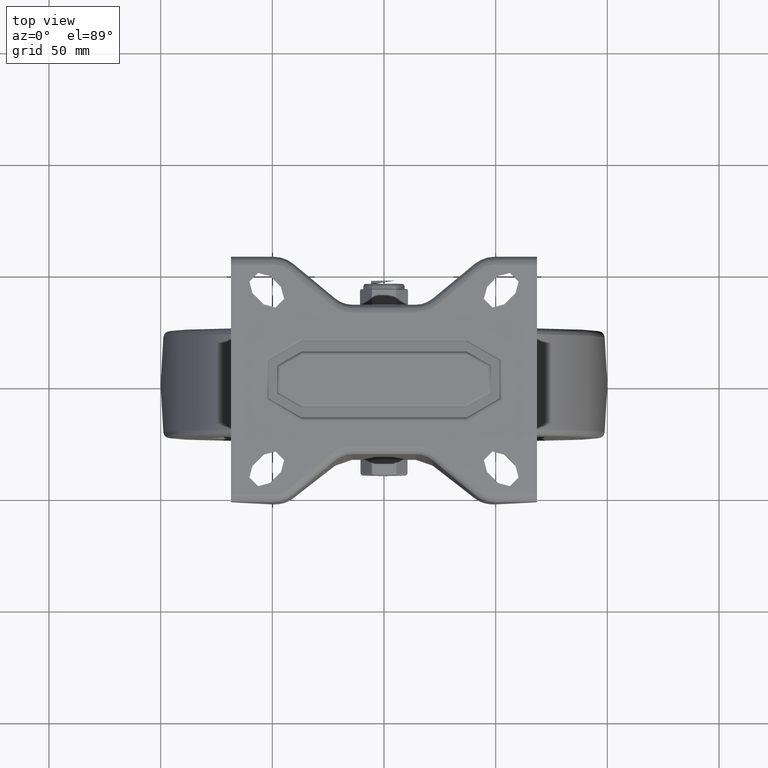
[diagram: clean part render]
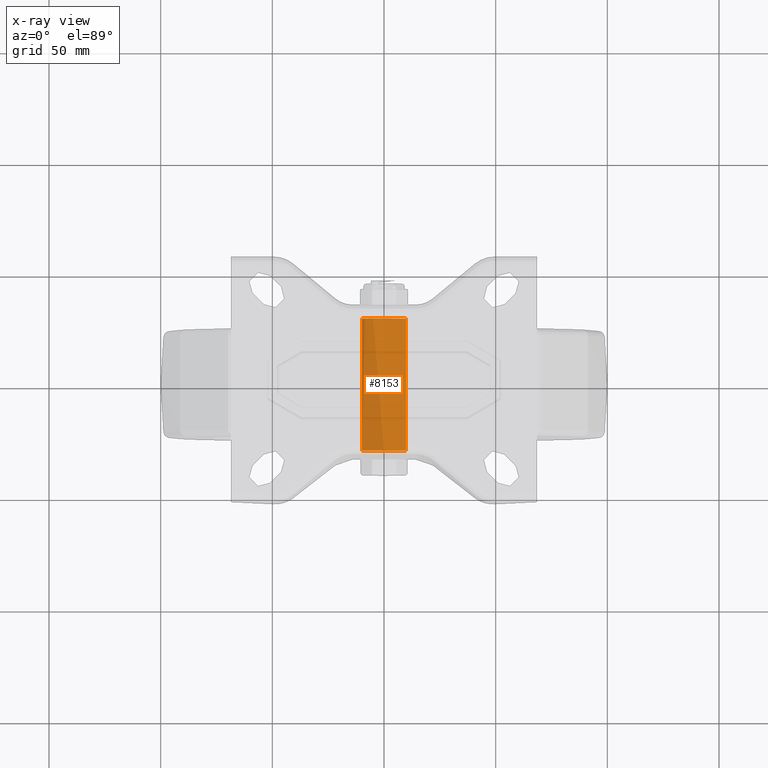
[diagram: x-ray — body ghosted, one internal face saturated and labeled with its STEP entity id]
A machine part, top view, then the same camera in x-ray: the body is ghosted and one INTERNAL B-rep face — a face not visible from any outside direction — is saturated and labeled: STEP entity #8153.
In plain terms, the highlighted cylindrical surface (bore or boss wall) has radius 9.875 mm, axis along (0, 1, 0).
Its self-contained STEP definition (entity closure, byte-faithful):
#1018=FACE_OUTER_BOUND('',#1528,.T.);
#1528=EDGE_LOOP('',(#6732,#6733,#6734,#6735,#6736,#6737));
#2150=LINE('',#13502,#2775);
#2775=VECTOR('',#10896,9.875);
#3251=CIRCLE('',#9057,9.875);
#3252=CIRCLE('',#9058,9.875);
#3253=CIRCLE('',#9059,9.875);
#3254=CIRCLE('',#9060,9.875);
#3803=VERTEX_POINT('',#13497);
#3804=VERTEX_POINT('',#13498);
#3805=VERTEX_POINT('',#13501);
#3806=VERTEX_POINT('',#13503);
#4821=EDGE_CURVE('',#3803,#3804,#3251,.T.);
#4822=EDGE_CURVE('',#3804,#3803,#3252,.T.);
#4823=EDGE_CURVE('',#3804,#3805,#2150,.T.);
#4824=EDGE_CURVE('',#3806,#3805,#3253,.T.);
#4825=EDGE_CURVE('',#3805,#3806,#3254,.T.);
#6732=ORIENTED_EDGE('',*,*,#4821,.F.);
#6733=ORIENTED_EDGE('',*,*,#4822,.F.);
#6734=ORIENTED_EDGE('',*,*,#4823,.T.);
#6735=ORIENTED_EDGE('',*,*,#4824,.F.);
#6736=ORIENTED_EDGE('',*,*,#4825,.F.);
#6737=ORIENTED_EDGE('',*,*,#4823,.F.);
#7800=CYLINDRICAL_SURFACE('',#9056,9.875);
#8153=ADVANCED_FACE('',(#1018),#7800,.T.);
#9056=AXIS2_PLACEMENT_3D('',#13496,#10890,#10891);
#9057=AXIS2_PLACEMENT_3D('',#13499,#10892,#10893);
#9058=AXIS2_PLACEMENT_3D('',#13500,#10894,#10895);
#9059=AXIS2_PLACEMENT_3D('',#13504,#10897,#10898);
#9060=AXIS2_PLACEMENT_3D('',#13505,#10899,#10900);
#10890=DIRECTION('center_axis',(0.,1.,3.49148336110938E-15));
#10891=DIRECTION('ref_axis',(1.,0.,0.));
#10892=DIRECTION('center_axis',(5.48171579701652E-47,1.,3.49148336110938E-15));
#10893=DIRECTION('ref_axis',(-1.,-4.27583392245887E-31,1.22464679914736E-16));
#10894=DIRECTION('center_axis',(5.48171579701652E-47,1.,3.49148336110938E-15));
#10895=DIRECTION('ref_axis',(-1.,-4.27583392245887E-31,1.22464679914736E-16));
#10896=DIRECTION('',(0.,-1.,-3.49148336110938E-15));
#10897=DIRECTION('center_axis',(5.48171579701652E-47,-1.,-3.49148336110938E-15));
#10898=DIRECTION('ref_axis',(-1.,4.27583392245887E-31,-1.22464679914736E-16));
#10899=DIRECTION('center_axis',(5.48171579701652E-47,-1.,-3.49148336110938E-15));
#10900=DIRECTION('ref_axis',(-1.,4.27583392245887E-31,-1.22464679914736E-16));
#13496=CARTESIAN_POINT('Origin',(0.,0.,0.));
#13497=CARTESIAN_POINT('',(1.20933871415801E-15,29.5,9.8750000000001));
#13498=CARTESIAN_POINT('',(-9.875,29.5,1.04208097866885E-13));
#13499=CARTESIAN_POINT('Origin',(0.,29.5,1.02998759152727E-13));
#13500=CARTESIAN_POINT('Origin',(0.,29.5,1.02998759152727E-13));
#13501=CARTESIAN_POINT('',(-9.875,-29.5,-1.01789420438569E-13));
#13502=CARTESIAN_POINT('',(-9.875,-4.22238599842811E-30,1.20933871415801E-15));
#13503=CARTESIAN_POINT('',(1.20933871415801E-15,-29.5,-9.8750000000001));
#13504=CARTESIAN_POINT('Origin',(0.,-29.5,-1.02998759152727E-13));
#13505=CARTESIAN_POINT('Origin',(0.,-29.5,-1.02998759152727E-13));